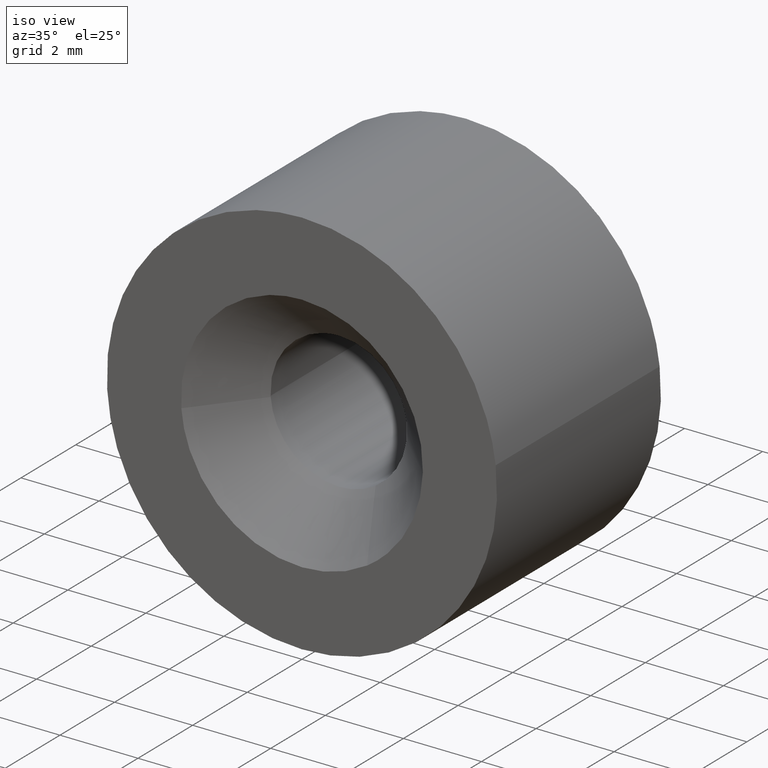
[diagram: clean part render]
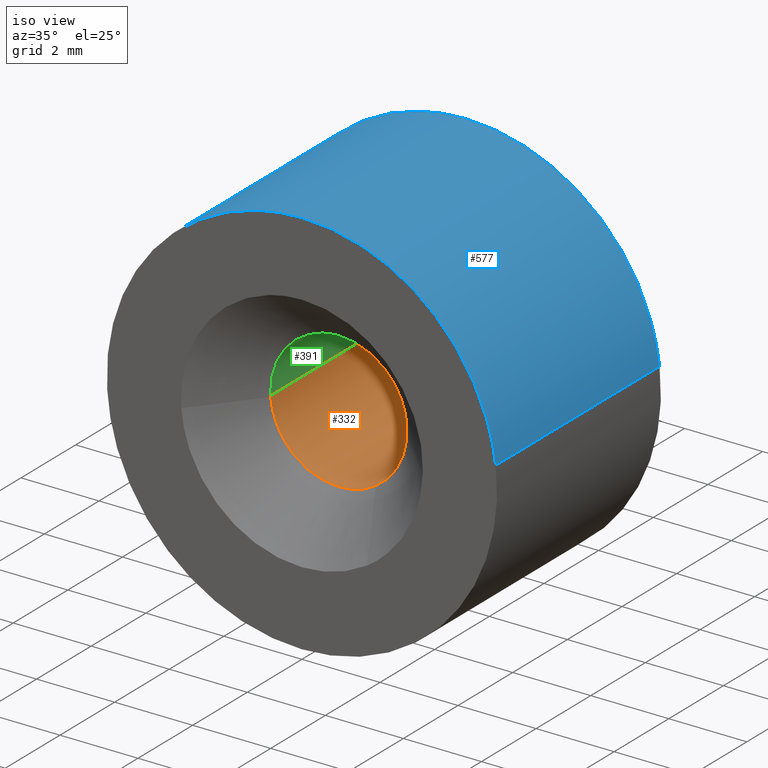
[diagram: same view with three faces highlighted in distinct colors, each labeled with its STEP entity id]
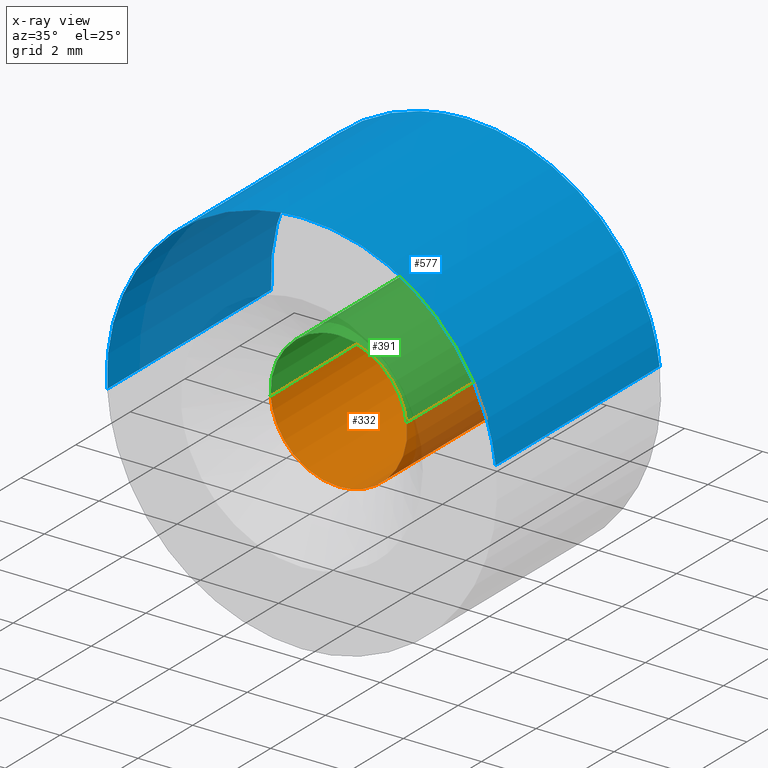
[diagram: x-ray of the same camera — body ghosted, the three highlighted faces saturated]
A machine part, iso view with three faces highlighted in distinct colors.
The next image is the same camera in x-ray (body ghosted, the three faces saturated) — at least one of them is partly hidden behind the body in this view.
Their STEP definitions:

[orange] entity #332 — the highlighted face is a freeform B-spline surface patch.
#66=CARTESIAN_POINT('',(1.737767022411301,-4.650000000000009,0.206556955368015));
#67=VERTEX_POINT('',#66);
#68=CARTESIAN_POINT('',(0.941238888533195,-4.650000000000139,-1.475320085511372));
#69=VERTEX_POINT('',#68);
#70=CARTESIAN_POINT('',(1.737767022411301,-4.650000000000008,0.206556955368015));
#71=CARTESIAN_POINT('',(1.750000000000000,-4.650000000000000,0.103640716129135));
#72=CARTESIAN_POINT('',(1.750000000000000,-4.650000000000000,0.0));
#73=CARTESIAN_POINT('',(1.750000000000001,-4.650000000000000,-0.959338898022254));
#74=CARTESIAN_POINT('',(0.941238888533195,-4.650000000000139,-1.475320085511373));
#82=(BOUNDED_CURVE()B_SPLINE_CURVE(2,(#70,#71,#72,#73,#74),.UNSPECIFIED.,.F.,.U.)B_SPLINE_CURVE_WITH_KNOTS((3,2,3),(0.229562760926032,0.250000000000000,0.407950112627101),.UNSPECIFIED.)CURVE()GEOMETRIC_REPRESENTATION_ITEM()RATIONAL_B_SPLINE_CURVE((0.956027317524783,0.976056285055862,1.0,0.814949932402804,0.863729296954646))REPRESENTATION_ITEM(''));
#83=EDGE_CURVE('',#67,#69,#82,.T.);
#126=CARTESIAN_POINT('',(-1.744605334033341,-4.650000000000918,-0.137303417530764));
#127=VERTEX_POINT('',#126);
#133=CARTESIAN_POINT('',(-1.746735897237812,-4.650000000000000,-0.106834944193444));
#134=VERTEX_POINT('',#133);
#135=CARTESIAN_POINT('',(-1.744605334033341,-4.650000000000918,-0.137303417530764));
#136=CARTESIAN_POINT('',(-1.745803562803911,-4.650000000000000,-0.122078477440978));
#137=CARTESIAN_POINT('',(-1.746735897237812,-4.650000000000000,-0.106834944193444));
#145=(BOUNDED_CURVE()B_SPLINE_CURVE(2,(#135,#136,#137),.UNSPECIFIED.,.F.,.U.)B_SPLINE_CURVE_WITH_KNOTS((3,3),(0.736331300631399,0.739332962240497),.UNSPECIFIED.)CURVE()GEOMETRIC_REPRESENTATION_ITEM()RATIONAL_B_SPLINE_CURVE((0.969723356168960,0.972855475562349,0.976072041670049))REPRESENTATION_ITEM(''));
#146=EDGE_CURVE('',#127,#134,#145,.T.);
#199=CARTESIAN_POINT('',(0.0,-4.650000000000000,-1.750000000000000));
#200=VERTEX_POINT('',#199);
#201=CARTESIAN_POINT('',(0.941238888533195,-4.650000000000139,-1.475320085511373));
#202=CARTESIAN_POINT('',(0.510699096916628,-4.650000000000000,-1.750000000000000));
#203=CARTESIAN_POINT('',(0.0,-4.650000000000000,-1.750000000000000));
#211=(BOUNDED_CURVE()B_SPLINE_CURVE(2,(#201,#202,#203),.UNSPECIFIED.,.F.,.U.)B_SPLINE_CURVE_WITH_KNOTS((3,3),(0.407950112627101,0.500000000000000),.UNSPECIFIED.)CURVE()GEOMETRIC_REPRESENTATION_ITEM()RATIONAL_B_SPLINE_CURVE((0.863729296954646,0.892156848783744,1.0))REPRESENTATION_ITEM(''));
#212=EDGE_CURVE('',#69,#200,#211,.T.);
#214=CARTESIAN_POINT('',(0.0,-4.650000000000000,-1.750000000000000));
#215=CARTESIAN_POINT('',(-1.617683360388907,-4.650000000000000,-1.750000000000000));
#216=CARTESIAN_POINT('',(-1.744605334033341,-4.650000000000918,-0.137303417530764));
#224=(BOUNDED_CURVE()B_SPLINE_CURVE(2,(#214,#215,#216),.UNSPECIFIED.,.F.,.U.)B_SPLINE_CURVE_WITH_KNOTS((3,3),(0.500000000000000,0.736331300631398),.UNSPECIFIED.)CURVE()GEOMETRIC_REPRESENTATION_ITEM()RATIONAL_B_SPLINE_CURVE((1.0,0.723120658606800,0.969723356168959))REPRESENTATION_ITEM(''));
#225=EDGE_CURVE('',#200,#127,#224,.T.);
#260=CARTESIAN_POINT('',(1.737766671136416,-4.766250000000001,0.206559910649327));
#261=CARTESIAN_POINT('',(1.743678327035060,-4.766250000000001,0.156825775116461));
#262=CARTESIAN_POINT('',(1.746735897238267,-4.766250000000000,0.106834944186000));
#263=CARTESIAN_POINT('',(1.853570841424267,-4.766250000000001,-1.639900953052267));
#264=CARTESIAN_POINT('',(0.106834944186000,-4.766250000000000,-1.746735897238267));
#265=CARTESIAN_POINT('',(-1.639900953052267,-4.766250000000001,-1.853570841424267));
#266=CARTESIAN_POINT('',(-1.746735897238267,-4.766250000000000,-0.106834944186000));
#267=CARTESIAN_POINT('',(1.737766671136416,0.119156250000000,0.206559910649327));
#268=CARTESIAN_POINT('',(1.743678327035060,0.119156250000000,0.156825775116461));
#269=CARTESIAN_POINT('',(1.746735897238267,0.119156250000000,0.106834944186000));
#270=CARTESIAN_POINT('',(1.853570841424267,0.119156250000000,-1.639900953052267));
#271=CARTESIAN_POINT('',(0.106834944186000,0.119156250000000,-1.746735897238267));
#272=CARTESIAN_POINT('',(-1.639900953052267,0.119156250000000,-1.853570841424267));
#273=CARTESIAN_POINT('',(-1.746735897238267,0.119156250000000,-0.106834944186000));
#281=(BOUNDED_SURFACE()B_SPLINE_SURFACE(2,1,((#260,#267),(#261,#268),(#262,#269),(#263,#270),(#264,#271),(#265,#272),(#266,#273)),.UNSPECIFIED.,.F.,.F.,.U.)B_SPLINE_SURFACE_WITH_KNOTS((3,2,2,3),(2,2),(3.078760800517997,3.141592653589793,4.712388980384690,6.283185307179586),(0.0,4.885406250000001),.UNSPECIFIED.)GEOMETRIC_REPRESENTATION_ITEM()RATIONAL_B_SPLINE_SURFACE(((0.977505800795127,0.977505800795127),(0.988284271247462,0.988284271247462),(1.0,1.0),(0.707106781186548,0.707106781186548),(1.0,1.0),(0.707106781186548,0.707106781186548),(1.0,1.0)))REPRESENTATION_ITEM('')SURFACE());
#282=ORIENTED_EDGE('',*,*,#83,.F.);
#283=CARTESIAN_POINT('',(1.737767018176487,3.123371E-016,0.206556990996085));
#284=VERTEX_POINT('',#283);
#285=CARTESIAN_POINT('',(1.737767022411301,-4.650000000000009,0.206556955368015));
#286=CARTESIAN_POINT('',(1.737767018176487,3.123371E-016,0.206556990996085));
#287=QUASI_UNIFORM_CURVE('',1,(#285,#286),.UNSPECIFIED.,.F.,.U.);
#288=EDGE_CURVE('',#67,#284,#287,.T.);
#289=ORIENTED_EDGE('',*,*,#288,.T.);
#290=CARTESIAN_POINT('',(0.0,0.0,-1.750000000000000));
#291=VERTEX_POINT('',#290);
#292=CARTESIAN_POINT('',(1.737767018176487,3.123371E-016,0.206556990996086));
#293=CARTESIAN_POINT('',(1.750000000000001,0.0,0.103640734131489));
#294=CARTESIAN_POINT('',(1.750000000000000,0.0,0.0));
#295=CARTESIAN_POINT('',(1.750000000000000,0.0,-1.750000000000000));
#296=CARTESIAN_POINT('',(0.0,0.0,-1.750000000000000));
#304=(BOUNDED_CURVE()B_SPLINE_CURVE(2,(#292,#293,#294,#295,#296),.UNSPECIFIED.,.F.,.U.)B_SPLINE_CURVE_WITH_KNOTS((3,2,3),(0.229562757461090,0.250000000000000,0.500000000000000),.UNSPECIFIED.)CURVE()GEOMETRIC_REPRESENTATION_ITEM()RATIONAL_B_SPLINE_CURVE((0.956027310733336,0.976056280996430,1.0,0.707106781186547,1.0))REPRESENTATION_ITEM(''));
#305=EDGE_CURVE('',#284,#291,#304,.T.);
#306=ORIENTED_EDGE('',*,*,#305,.T.);
#307=CARTESIAN_POINT('',(-1.746735897237812,3.469447E-017,-0.106834944193444));
#308=VERTEX_POINT('',#307);
#309=CARTESIAN_POINT('',(0.0,0.0,-1.750000000000000));
#310=CARTESIAN_POINT('',(-1.646235617070904,0.0,-1.750000000000000));
#311=CARTESIAN_POINT('',(-1.746735897237812,3.469447E-017,-0.106834944193444));
#319=(BOUNDED_CURVE()B_SPLINE_CURVE(2,(#309,#310,#311),.UNSPECIFIED.,.F.,.U.)B_SPLINE_CURVE_WITH_KNOTS((3,3),(0.500000000000000,0.739332962240497),.UNSPECIFIED.)CURVE()GEOMETRIC_REPRESENTATION_ITEM()RATIONAL_B_SPLINE_CURVE((1.0,0.719603993284889,0.976072041670049))REPRESENTATION_ITEM(''));
#320=EDGE_CURVE('',#291,#308,#319,.T.);
#321=ORIENTED_EDGE('',*,*,#320,.T.);
#322=CARTESIAN_POINT('',(-1.746735897237812,-4.650000000000000,-0.106834944193444));
#323=CARTESIAN_POINT('',(-1.746735897237812,3.469447E-017,-0.106834944193444));
#324=QUASI_UNIFORM_CURVE('',1,(#322,#323),.UNSPECIFIED.,.F.,.U.);
#325=EDGE_CURVE('',#134,#308,#324,.T.);
#326=ORIENTED_EDGE('',*,*,#325,.F.);
#327=ORIENTED_EDGE('',*,*,#146,.F.);
#328=ORIENTED_EDGE('',*,*,#225,.F.);
#329=ORIENTED_EDGE('',*,*,#212,.F.);
#330=EDGE_LOOP('',(#282,#289,#306,#321,#326,#327,#328,#329));
#331=FACE_OUTER_BOUND('',#330,.T.);
#332=ADVANCED_FACE('',(#331),#281,.F.);

[blue] entity #577 — the highlighted face is a freeform B-spline surface patch.
#414=CARTESIAN_POINT('',(4.965048007634929,-4.741845E-015,0.590168011561354));
#415=VERTEX_POINT('',#414);
#433=CARTESIAN_POINT('',(4.965048002999415,-6.0,0.590168050559857));
#434=VERTEX_POINT('',#433);
#435=CARTESIAN_POINT('',(4.965048002999415,-6.0,0.590168050559857));
#436=CARTESIAN_POINT('',(4.965048007634929,-4.741845E-015,0.590168011561354));
#437=QUASI_UNIFORM_CURVE('',1,(#435,#436),.UNSPECIFIED.,.F.,.U.);
#438=EDGE_CURVE('',#434,#415,#437,.T.);
#457=CARTESIAN_POINT('',(-4.990674099992546,-6.0,-0.305240933789139));
#458=VERTEX_POINT('',#457);
#472=CARTESIAN_POINT('',(-4.990674101339240,-1.942890E-015,-0.305240911770624));
#473=VERTEX_POINT('',#472);
#474=CARTESIAN_POINT('',(-4.990674099992546,-6.0,-0.305240933789139));
#475=CARTESIAN_POINT('',(-4.990674101339240,-1.942890E-015,-0.305240911770624));
#476=QUASI_UNIFORM_CURVE('',1,(#474,#475),.UNSPECIFIED.,.F.,.U.);
#477=EDGE_CURVE('',#458,#473,#476,.T.);
#495=CARTESIAN_POINT('',(-4.990673992109334,-6.150000000000001,-0.305242697674285));
#496=CARTESIAN_POINT('',(-5.295916689783620,-6.150000000000002,4.685431294435048));
#497=CARTESIAN_POINT('',(-0.305242697674285,-6.150000000000001,4.990673992109334));
#498=CARTESIAN_POINT('',(4.407717454197504,-6.150000000000001,5.278930983662638));
#499=CARTESIAN_POINT('',(4.965047631818332,-6.150000000000001,0.590171173283792));
#500=CARTESIAN_POINT('',(-4.990673992109334,0.153750000000001,-0.305242697674285));
#501=CARTESIAN_POINT('',(-5.295916689783620,0.153750000000000,4.685431294435048));
#502=CARTESIAN_POINT('',(-0.305242697674285,0.153750000000001,4.990673992109334));
#503=CARTESIAN_POINT('',(4.407717454197504,0.153750000000001,5.278930983662638));
#504=CARTESIAN_POINT('',(4.965047631818332,0.153750000000000,0.590171173283792));
#512=(BOUNDED_SURFACE()B_SPLINE_SURFACE(2,1,((#495,#500),(#496,#501),(#497,#502),(#498,#503),(#499,#504)),.UNSPECIFIED.,.F.,.F.,.U.)B_SPLINE_SURFACE_WITH_KNOTS((3,2,3),(2,2),(0.0,8.284271247461899,16.237171645025320),(0.0,6.303750000000004),.UNSPECIFIED.)GEOMETRIC_REPRESENTATION_ITEM()RATIONAL_B_SPLINE_SURFACE(((1.0,1.0),(0.707106781186548,0.707106781186548),(1.0,1.0),(0.718822509939086,0.718822509939086),(0.977505800795127,0.977505800795127)))REPRESENTATION_ITEM('')SURFACE());
#513=CARTESIAN_POINT('',(0.0,0.0,5.0));
#514=VERTEX_POINT('',#513);
#515=CARTESIAN_POINT('',(0.0,0.0,5.0));
#516=CARTESIAN_POINT('',(4.440875477595059,0.0,5.000000000000001));
#517=CARTESIAN_POINT('',(4.965048007634929,-4.741845E-015,0.590168011561354));
#525=(BOUNDED_CURVE()B_SPLINE_CURVE(2,(#515,#516,#517),.UNSPECIFIED.,.F.,.U.)B_SPLINE_CURVE_WITH_KNOTS((3,3),(0.0,0.229562581136241),.UNSPECIFIED.)CURVE()GEOMETRIC_REPRESENTATION_ITEM()RATIONAL_B_SPLINE_CURVE((1.0,0.731050706767529,0.956026965128767))REPRESENTATION_ITEM(''));
#526=EDGE_CURVE('',#514,#415,#525,.T.);
#527=ORIENTED_EDGE('',*,*,#526,.F.);
#528=CARTESIAN_POINT('',(-4.990674101339240,-1.942890E-015,-0.305240911770624));
#529=CARTESIAN_POINT('',(-5.000000000000001,0.0,-0.152762921037389));
#530=CARTESIAN_POINT('',(-5.0,0.0,0.0));
#531=CARTESIAN_POINT('',(-5.000000000000001,0.0,5.000000000000001));
#532=CARTESIAN_POINT('',(0.0,0.0,5.0));
#540=(BOUNDED_CURVE()B_SPLINE_CURVE(2,(#528,#529,#530,#531,#532),.UNSPECIFIED.,.F.,.U.)B_SPLINE_CURVE_WITH_KNOTS((3,2,3),(0.739333023987528,0.750000000000000,1.0),.UNSPECIFIED.)CURVE()GEOMETRIC_REPRESENTATION_ITEM()RATIONAL_B_SPLINE_CURVE((0.976072174005725,0.987502860242804,1.0,0.707106781186548,1.0))REPRESENTATION_ITEM(''));
#541=EDGE_CURVE('',#473,#514,#540,.T.);
#542=ORIENTED_EDGE('',*,*,#541,.F.);
#543=ORIENTED_EDGE('',*,*,#477,.F.);
#544=CARTESIAN_POINT('',(0.0,-6.0,5.0));
#545=VERTEX_POINT('',#544);
#546=CARTESIAN_POINT('',(-4.990674099992546,-6.0,-0.305240933789139));
#547=CARTESIAN_POINT('',(-4.999999999999999,-6.000000000000001,-0.152762932077514));
#548=CARTESIAN_POINT('',(-5.0,-6.0,0.0));
#549=CARTESIAN_POINT('',(-5.000000000000001,-6.0,5.000000000000001));
#550=CARTESIAN_POINT('',(0.0,-6.0,5.0));
#558=(BOUNDED_CURVE()B_SPLINE_CURVE(2,(#546,#547,#548,#549,#550),.UNSPECIFIED.,.F.,.U.)B_SPLINE_CURVE_WITH_KNOTS((3,2,3),(0.739333023226263,0.750000000000000,1.0),.UNSPECIFIED.)CURVE()GEOMETRIC_REPRESENTATION_ITEM()RATIONAL_B_SPLINE_CURVE((0.976072172374189,0.987502859350927,1.0,0.707106781186548,1.0))REPRESENTATION_ITEM(''));
#559=EDGE_CURVE('',#458,#545,#558,.T.);
#560=ORIENTED_EDGE('',*,*,#559,.T.);
#561=CARTESIAN_POINT('',(0.0,-6.0,5.0));
#562=CARTESIAN_POINT('',(4.440875442468177,-6.000000000000001,5.0));
#563=CARTESIAN_POINT('',(4.965048002999415,-6.000000000000001,0.590168050559857));
#571=(BOUNDED_CURVE()B_SPLINE_CURVE(2,(#561,#562,#563),.UNSPECIFIED.,.F.,.U.)B_SPLINE_CURVE_WITH_KNOTS((3,3),(0.0,0.229562579808786),.UNSPECIFIED.)CURVE()GEOMETRIC_REPRESENTATION_ITEM()RATIONAL_B_SPLINE_CURVE((1.0,0.731050708322738,0.956026962526900))REPRESENTATION_ITEM(''));
#572=EDGE_CURVE('',#545,#434,#571,.T.);
#573=ORIENTED_EDGE('',*,*,#572,.T.);
#574=ORIENTED_EDGE('',*,*,#438,.T.);
#575=EDGE_LOOP('',(#527,#542,#543,#560,#573,#574));
#576=FACE_OUTER_BOUND('',#575,.T.);
#577=ADVANCED_FACE('',(#576),#512,.T.);

[green] entity #391 — the highlighted face is a freeform B-spline surface patch.
#66=CARTESIAN_POINT('',(1.737767022411301,-4.650000000000009,0.206556955368015));
#67=VERTEX_POINT('',#66);
#133=CARTESIAN_POINT('',(-1.746735897237812,-4.650000000000000,-0.106834944193444));
#134=VERTEX_POINT('',#133);
#148=CARTESIAN_POINT('',(0.0,-4.650000000000000,1.750000000000000));
#149=VERTEX_POINT('',#148);
#150=CARTESIAN_POINT('',(-1.746735897237812,-4.650000000000000,-0.106834944193444));
#151=CARTESIAN_POINT('',(-1.750000000000000,-4.650000000000000,-0.053467335779996));
#152=CARTESIAN_POINT('',(-1.750000000000000,-4.650000000000000,0.0));
#153=CARTESIAN_POINT('',(-1.750000000000000,-4.649999999999999,1.750000000000000));
#154=CARTESIAN_POINT('',(0.0,-4.650000000000000,1.750000000000000));
#162=(BOUNDED_CURVE()B_SPLINE_CURVE(2,(#150,#151,#152,#153,#154),.UNSPECIFIED.,.F.,.U.)B_SPLINE_CURVE_WITH_KNOTS((3,2,3),(0.739332962240498,0.750000000000000,1.0),.UNSPECIFIED.)CURVE()GEOMETRIC_REPRESENTATION_ITEM()RATIONAL_B_SPLINE_CURVE((0.976072041670050,0.987502787901659,1.0,0.707106781186547,1.0))REPRESENTATION_ITEM(''));
#163=EDGE_CURVE('',#134,#149,#162,.T.);
#165=CARTESIAN_POINT('',(0.0,-4.650000000000000,1.750000000000000));
#166=CARTESIAN_POINT('',(1.554308082307627,-4.650000000000000,1.750000000000000));
#167=CARTESIAN_POINT('',(1.737767022411301,-4.650000000000008,0.206556955368015));
#175=(BOUNDED_CURVE()B_SPLINE_CURVE(2,(#165,#166,#167),.UNSPECIFIED.,.F.,.U.)B_SPLINE_CURVE_WITH_KNOTS((3,3),(0.0,0.229562760926032),.UNSPECIFIED.)CURVE()GEOMETRIC_REPRESENTATION_ITEM()RATIONAL_B_SPLINE_CURVE((1.0,0.731050496130685,0.956027317524783))REPRESENTATION_ITEM(''));
#176=EDGE_CURVE('',#149,#67,#175,.T.);
#283=CARTESIAN_POINT('',(1.737767018176487,3.123371E-016,0.206556990996085));
#284=VERTEX_POINT('',#283);
#285=CARTESIAN_POINT('',(1.737767022411301,-4.650000000000009,0.206556955368015));
#286=CARTESIAN_POINT('',(1.737767018176487,3.123371E-016,0.206556990996085));
#287=QUASI_UNIFORM_CURVE('',1,(#285,#286),.UNSPECIFIED.,.F.,.U.);
#288=EDGE_CURVE('',#67,#284,#287,.T.);
#307=CARTESIAN_POINT('',(-1.746735897237812,3.469447E-017,-0.106834944193444));
#308=VERTEX_POINT('',#307);
#322=CARTESIAN_POINT('',(-1.746735897237812,-4.650000000000000,-0.106834944193444));
#323=CARTESIAN_POINT('',(-1.746735897237812,3.469447E-017,-0.106834944193444));
#324=QUASI_UNIFORM_CURVE('',1,(#322,#323),.UNSPECIFIED.,.F.,.U.);
#325=EDGE_CURVE('',#134,#308,#324,.T.);
#333=CARTESIAN_POINT('',(-1.745263691107333,-4.766249999999998,-0.130905301657788));
#334=CARTESIAN_POINT('',(-1.745997687342886,-4.766249999999999,-0.118904569286490));
#335=CARTESIAN_POINT('',(-1.853570841424267,-4.766250000000001,1.639900953052267));
#336=CARTESIAN_POINT('',(-0.106834944186000,-4.766250000000000,1.746735897238267));
#337=CARTESIAN_POINT('',(1.542701108969127,-4.766249999999999,1.847625844281923));
#338=CARTESIAN_POINT('',(1.739227227456653,-4.766250000000001,0.194272404876085));
#339=CARTESIAN_POINT('',(1.740679933877908,-4.766250000000002,0.182050939472328));
#340=CARTESIAN_POINT('',(-1.745263691107333,0.119156250000000,-0.130905301657788));
#341=CARTESIAN_POINT('',(-1.745997687342886,0.119156250000000,-0.118904569286490));
#342=CARTESIAN_POINT('',(-1.853570841424267,0.119156250000000,1.639900953052267));
#343=CARTESIAN_POINT('',(-0.106834944186000,0.119156250000000,1.746735897238267));
#344=CARTESIAN_POINT('',(1.542701108969127,0.119156250000000,1.847625844281923));
#345=CARTESIAN_POINT('',(1.739227227456653,0.119156250000000,0.194272404876085));
#346=CARTESIAN_POINT('',(1.740679933877908,0.119156250000000,0.182050939472328));
#354=(BOUNDED_SURFACE()B_SPLINE_SURFACE(2,1,((#333,#340),(#334,#341),(#335,#342),(#336,#343),(#337,#344),(#338,#345),(#339,#346)),.UNSPECIFIED.,.F.,.F.,.U.)B_SPLINE_SURFACE_WITH_KNOTS((3,1,2,1,3),(2,2),(0.0,0.028415066793799,2.927910003405464,5.711425142552661,5.739843617607674),(0.0,4.885406250000001),.UNSPECIFIED.)GEOMETRIC_REPRESENTATION_ITEM()RATIONAL_B_SPLINE_SURFACE(((1.005740710405076,1.005740710405076),(1.002870355202538,1.002870355202538),(0.707106781186548,0.707106781186548),(1.0,1.0),(0.718822509939086,0.718822509939086),(0.980146844324925,0.980146844324925),(0.982787887854724,0.982787887854724)))REPRESENTATION_ITEM('')SURFACE());
#355=ORIENTED_EDGE('',*,*,#176,.F.);
#356=ORIENTED_EDGE('',*,*,#163,.F.);
#357=ORIENTED_EDGE('',*,*,#325,.T.);
#358=CARTESIAN_POINT('',(0.0,0.0,1.750000000000000));
#359=VERTEX_POINT('',#358);
#360=CARTESIAN_POINT('',(-1.746735897237812,3.469447E-017,-0.106834944193444));
#361=CARTESIAN_POINT('',(-1.750000000000000,0.0,-0.053467335779996));
#362=CARTESIAN_POINT('',(-1.750000000000000,0.0,0.0));
#363=CARTESIAN_POINT('',(-1.750000000000000,0.0,1.750000000000000));
#364=CARTESIAN_POINT('',(0.0,0.0,1.750000000000000));
#372=(BOUNDED_CURVE()B_SPLINE_CURVE(2,(#360,#361,#362,#363,#364),.UNSPECIFIED.,.F.,.U.)B_SPLINE_CURVE_WITH_KNOTS((3,2,3),(0.739332962240498,0.750000000000000,1.0),.UNSPECIFIED.)CURVE()GEOMETRIC_REPRESENTATION_ITEM()RATIONAL_B_SPLINE_CURVE((0.976072041670050,0.987502787901659,1.0,0.707106781186547,1.0))REPRESENTATION_ITEM(''));
#373=EDGE_CURVE('',#308,#359,#372,.T.);
#374=ORIENTED_EDGE('',*,*,#373,.T.);
#375=CARTESIAN_POINT('',(0.0,0.0,1.750000000000000));
#376=CARTESIAN_POINT('',(1.554308050216553,0.0,1.749999999999999));
#377=CARTESIAN_POINT('',(1.737767018176487,3.123371E-016,0.206556990996086));
#385=(BOUNDED_CURVE()B_SPLINE_CURVE(2,(#375,#376,#377),.UNSPECIFIED.,.F.,.U.)B_SPLINE_CURVE_WITH_KNOTS((3,3),(0.0,0.229562757461090),.UNSPECIFIED.)CURVE()GEOMETRIC_REPRESENTATION_ITEM()RATIONAL_B_SPLINE_CURVE((1.0,0.731050500190118,0.956027310733336))REPRESENTATION_ITEM(''));
#386=EDGE_CURVE('',#359,#284,#385,.T.);
#387=ORIENTED_EDGE('',*,*,#386,.T.);
#388=ORIENTED_EDGE('',*,*,#288,.F.);
#389=EDGE_LOOP('',(#355,#356,#357,#374,#387,#388));
#390=FACE_OUTER_BOUND('',#389,.T.);
#391=ADVANCED_FACE('',(#390),#354,.F.);